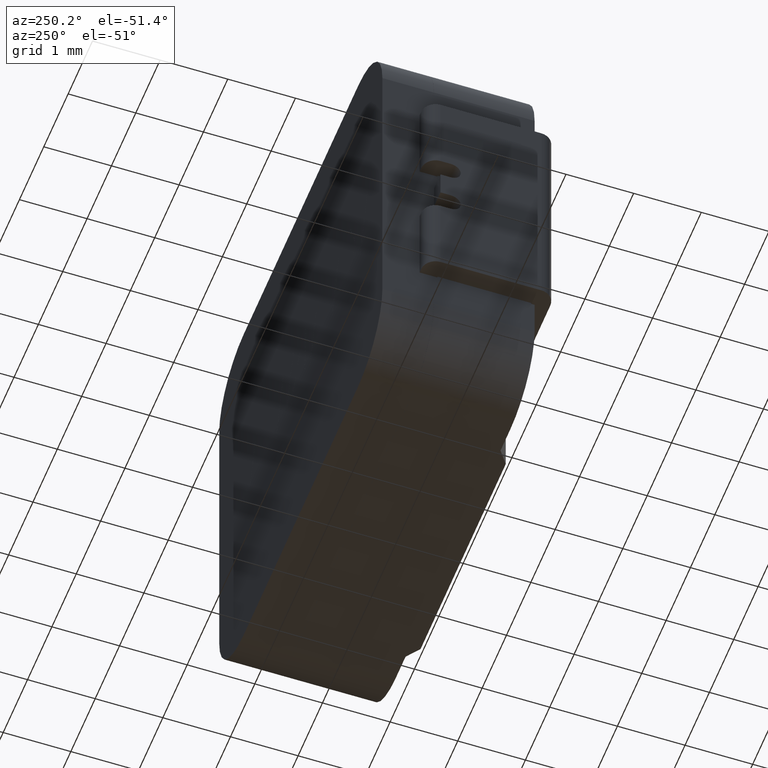
[diagram: clean part render]
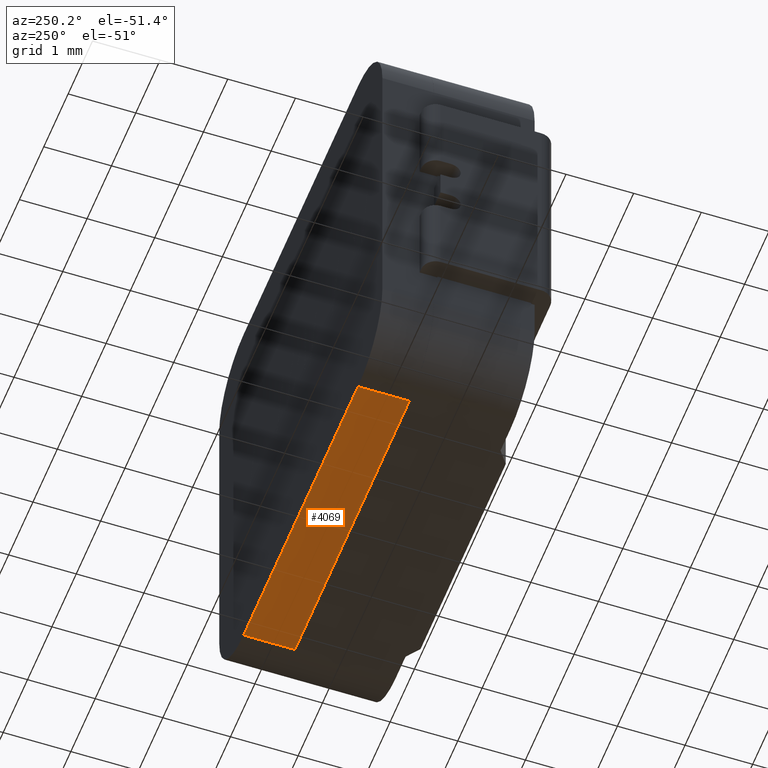
[diagram: same view with one face highlighted and labeled with its STEP entity id]
A machine part, auxiliary view. The second image highlights one B-rep face of the part: STEP entity #4069.
In plain terms, the highlighted planar face has unit normal (0, -0, 1).
Its self-contained STEP definition (entity closure, byte-faithful):
#47 = EDGE_CURVE ( 'NONE', #1532, #200, #3363, .T. ) ;
#91 = VECTOR ( 'NONE', #2683, 1000.000000000000000 ) ;
#114 = DIRECTION ( 'NONE',  ( 2.589139516383295297E-16, -0.0000000000000000000, 1.000000000000000000 ) ) ;
#200 = VERTEX_POINT ( 'NONE', #3881 ) ;
#285 = ORIENTED_EDGE ( 'NONE', *, *, #47, .T. ) ;
#459 = DIRECTION ( 'NONE',  ( -1.000000000000000000, 0.0000000000000000000, 2.589139516383295297E-16 ) ) ;
#933 = ORIENTED_EDGE ( 'NONE', *, *, #5099, .T. ) ;
#962 = CARTESIAN_POINT ( 'NONE',  ( -3.350000000000000089, 1.640999999999999792, -3.349999999999999645 ) ) ;
#1262 = EDGE_CURVE ( 'NONE', #3357, #1991, #4108, .T. ) ;
#1532 = VERTEX_POINT ( 'NONE', #4551 ) ;
#1537 = ORIENTED_EDGE ( 'NONE', *, *, #1262, .T. ) ;
#1554 = LINE ( 'NONE', #5795, #91 ) ;
#1767 = ORIENTED_EDGE ( 'NONE', *, *, #4932, .F. ) ;
#1981 = VECTOR ( 'NONE', #6433, 1000.000000000000000 ) ;
#1991 = VERTEX_POINT ( 'NONE', #2332 ) ;
#2034 = AXIS2_PLACEMENT_3D ( 'NONE', #2465, #114, #5494 ) ;
#2332 = CARTESIAN_POINT ( 'NONE',  ( -2.350000000000000533, 2.399999999999999911, -3.350000000000000089 ) ) ;
#2465 = CARTESIAN_POINT ( 'NONE',  ( -3.350000000000000089, 2.399999999999999911, -3.349999999999999645 ) ) ;
#2683 = DIRECTION ( 'NONE',  ( -1.000000000000000000, -0.0000000000000000000, 2.589139516383295297E-16 ) ) ;
#3357 = VERTEX_POINT ( 'NONE', #5533 ) ;
#3363 = LINE ( 'NONE', #5838, #1981 ) ;
#3821 = PLANE ( 'NONE',  #2034 ) ;
#3881 = CARTESIAN_POINT ( 'NONE',  ( 2.349999999999998312, 1.640999999999999792, -3.350000000000000977 ) ) ;
#4069 = ADVANCED_FACE ( 'NONE', ( #5877 ), #3821, .F. ) ;
#4108 = LINE ( 'NONE', #5406, #4758 ) ;
#4234 = VECTOR ( 'NONE', #459, 1000.000000000000000 ) ;
#4551 = CARTESIAN_POINT ( 'NONE',  ( 2.349999999999998312, 2.399999999999999911, -3.350000000000000977 ) ) ;
#4758 = VECTOR ( 'NONE', #5884, 1000.000000000000000 ) ;
#4932 = EDGE_CURVE ( 'NONE', #1532, #1991, #1554, .T. ) ;
#5099 = EDGE_CURVE ( 'NONE', #200, #3357, #6305, .T. ) ;
#5268 = EDGE_LOOP ( 'NONE', ( #933, #1537, #1767, #285 ) ) ;
#5406 = CARTESIAN_POINT ( 'NONE',  ( -2.350000000000000533, 2.399999999999999911, -3.350000000000000089 ) ) ;
#5494 = DIRECTION ( 'NONE',  ( 1.000000000000000000, 0.0000000000000000000, -2.589139516383295297E-16 ) ) ;
#5533 = CARTESIAN_POINT ( 'NONE',  ( -2.350000000000000533, 1.640999999999999792, -3.350000000000000089 ) ) ;
#5795 = CARTESIAN_POINT ( 'NONE',  ( -3.350000000000000089, 2.399999999999999911, -3.349999999999999645 ) ) ;
#5838 = CARTESIAN_POINT ( 'NONE',  ( 2.349999999999998312, 2.399999999999999911, -3.350000000000000977 ) ) ;
#5877 = FACE_OUTER_BOUND ( 'NONE', #5268, .T. ) ;
#5884 = DIRECTION ( 'NONE',  ( -0.0000000000000000000, 1.000000000000000000, 0.0000000000000000000 ) ) ;
#6305 = LINE ( 'NONE', #962, #4234 ) ;
#6433 = DIRECTION ( 'NONE',  ( 0.0000000000000000000, -1.000000000000000000, 0.0000000000000000000 ) ) ;